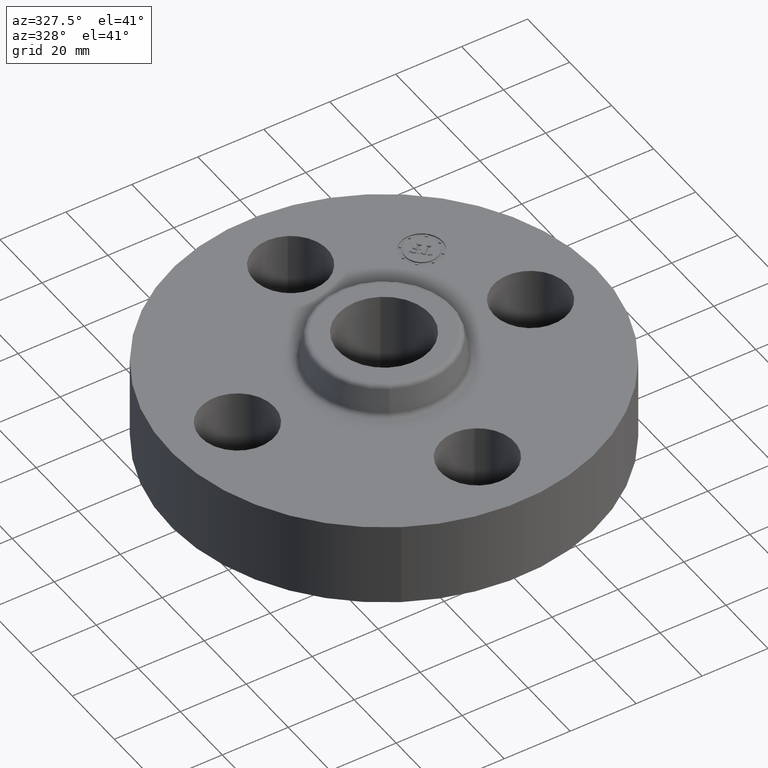
[diagram: clean part render]
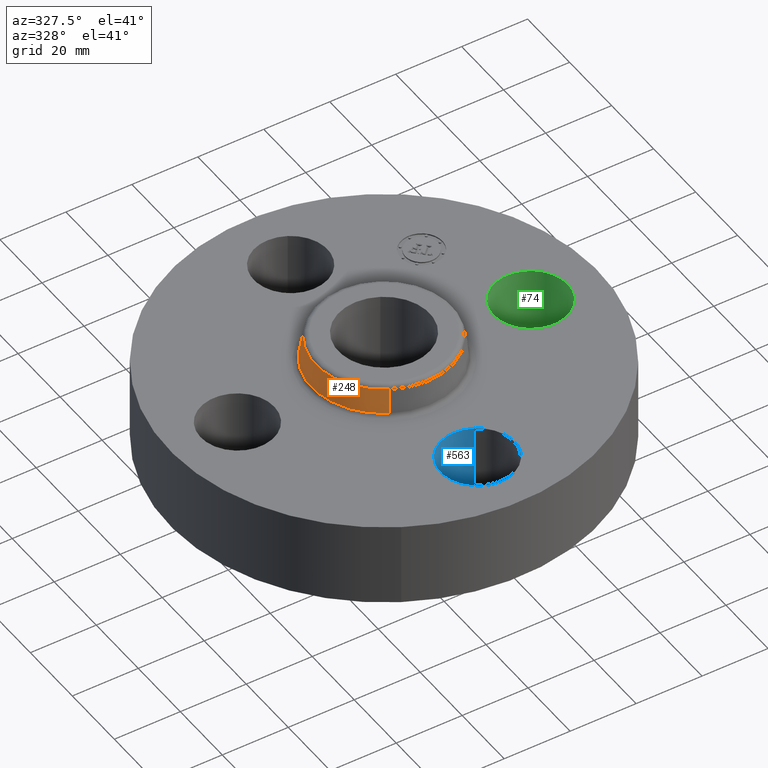
[diagram: same view with three faces highlighted in distinct colors, each labeled with its STEP entity id]
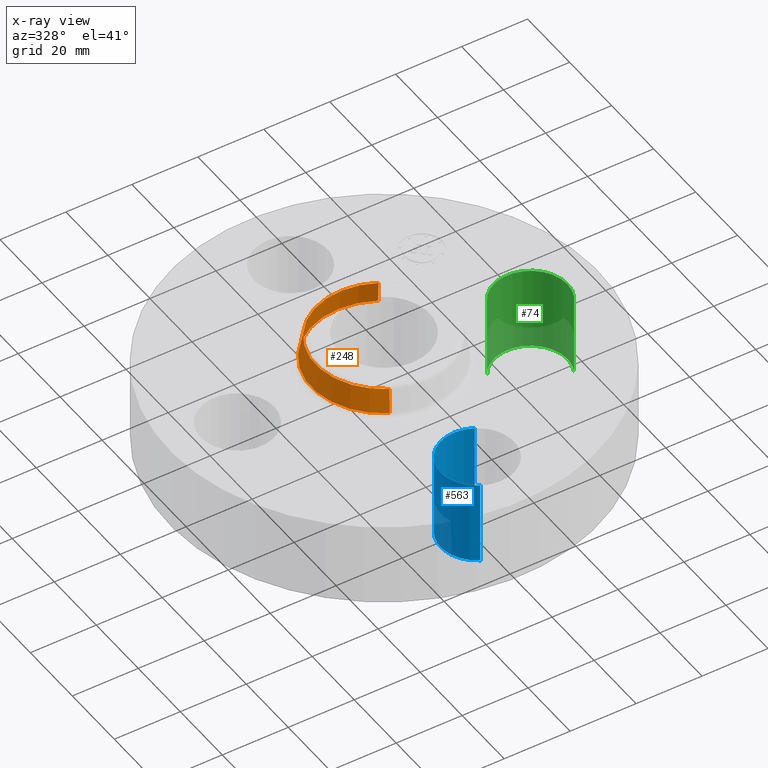
[diagram: x-ray of the same camera — body ghosted, the three highlighted faces saturated]
A machine part, auxiliary view with three faces highlighted in distinct colors.
The next image is the same camera in x-ray (body ghosted, the three faces saturated) — at least one of them is partly hidden behind the body in this view.
Their STEP definitions:

[orange] entity #248 — the highlighted conical surface has half-angle 10 deg.
#196=AXIS2_PLACEMENT_3D('Circle Axis2P3D',#194,#195,$) ;
#209=AXIS2_PLACEMENT_3D('Cone Axis2P3D',#206,#207,#208) ;
#239=AXIS2_PLACEMENT_3D('Circle Axis2P3D',#237,#238,$) ;
#167=CARTESIAN_POINT('Vertex',(0.415305974593,0.760212487246,1.04958110934)) ;
#174=CARTESIAN_POINT('Vertex',(-0.415305974593,-0.760212487246,1.04958110934)) ;
#194=CARTESIAN_POINT('Axis2P3D Location',(0.,0.,1.04958110934)) ;
#206=CARTESIAN_POINT('Axis2P3D Location',(0.,0.,1.33041889067)) ;
#211=CARTESIAN_POINT('Line Origine',(0.403435571318,0.7384838598,1.19)) ;
#215=CARTESIAN_POINT('Vertex',(0.391565168043,0.716755232353,1.33041889067)) ;
#222=CARTESIAN_POINT('Vertex',(-0.391565168043,-0.716755232353,1.33041889067)) ;
#225=CARTESIAN_POINT('Line Origine',(-0.403435571318,-0.7384838598,1.19)) ;
#237=CARTESIAN_POINT('Axis2P3D Location',(0.,0.,1.33041889067)) ;
#195=DIRECTION('Axis2P3D Direction',(0.,0.,-0.0393700787402)) ;
#207=DIRECTION('Axis2P3D Direction',(0.,0.,-0.0393700787402)) ;
#208=DIRECTION('Axis2P3D XDirection',(-0.0188750212049,-0.0345504945626,0.)) ;
#212=DIRECTION('Vector Direction',(0.00327761303565,0.00599963041829,-0.03877195878)) ;
#226=DIRECTION('Vector Direction',(-0.00327761303565,-0.00599963041829,-0.03877195878)) ;
#238=DIRECTION('Axis2P3D Direction',(0.,0.,-0.0393700787402)) ;
#213=VECTOR('Line Direction',#212,0.0393700787402) ;
#227=VECTOR('Line Direction',#226,0.0393700787402) ;
#243=ORIENTED_EDGE('',*,*,#198,.F.) ;
#244=ORIENTED_EDGE('',*,*,#229,.T.) ;
#245=ORIENTED_EDGE('',*,*,#241,.T.) ;
#246=ORIENTED_EDGE('',*,*,#217,.F.) ;
#248=ADVANCED_FACE('PartBody',(#247),#210,.T.) ;
#197=CIRCLE('generated circle',#196,0.866257512693) ;
#240=CIRCLE('generated circle',#239,0.816738234644) ;
#210=CONICAL_SURFACE('Cone',#209,0.816738234644,0.174532925199) ;
#198=EDGE_CURVE('',#175,#168,#197,.T.) ;
#217=EDGE_CURVE('',#168,#216,#214,.F.) ;
#229=EDGE_CURVE('',#175,#223,#228,.F.) ;
#241=EDGE_CURVE('',#223,#216,#240,.T.) ;
#242=EDGE_LOOP('',(#243,#244,#245,#246)) ;
#247=FACE_OUTER_BOUND('',#242,.T.) ;
#214=LINE('Line',#211,#213) ;
#228=LINE('Line',#225,#227) ;
#168=VERTEX_POINT('',#167) ;
#175=VERTEX_POINT('',#174) ;
#216=VERTEX_POINT('',#215) ;
#223=VERTEX_POINT('',#222) ;

[blue] entity #563 — the highlighted cylindrical surface (partial cylindrical patch) has radius 11.176 mm, axis along (0, -0, -1).
#391=AXIS2_PLACEMENT_3D('Circle Axis2P3D',#389,#390,$) ;
#524=AXIS2_PLACEMENT_3D('Cylinder Axis2P3D',#521,#522,#523) ;
#554=AXIS2_PLACEMENT_3D('Circle Axis2P3D',#552,#553,$) ;
#384=CARTESIAN_POINT('Vertex',(0.210947236987,-1.36386367277,0.)) ;
#386=CARTESIAN_POINT('Vertex',(-0.210947236987,-2.13613632724,0.)) ;
#389=CARTESIAN_POINT('Axis2P3D Location',(3.49676543189E-017,-1.75000000001,0.)) ;
#521=CARTESIAN_POINT('Axis2P3D Location',(1.07156594926E-016,-1.75000000001,0.99606299213)) ;
#526=CARTESIAN_POINT('Line Origine',(0.210947236987,-1.36386367277,0.500000000002)) ;
#530=CARTESIAN_POINT('Vertex',(0.210947236987,-1.36386367277,1.)) ;
#533=CARTESIAN_POINT('Line Origine',(-0.210947236987,-2.13613632724,0.500000000002)) ;
#537=CARTESIAN_POINT('Vertex',(-0.210947236987,-2.13613632724,1.)) ;
#552=CARTESIAN_POINT('Axis2P3D Location',(1.07156594926E-016,-1.75000000001,1.)) ;
#390=DIRECTION('Axis2P3D Direction',(0.,0.,-0.0393700787402)) ;
#522=DIRECTION('Axis2P3D Direction',(0.,-0.,-0.0393700787402)) ;
#523=DIRECTION('Axis2P3D XDirection',(-0.0188750212049,-0.0345504945626,0.)) ;
#527=DIRECTION('Vector Direction',(0.,0.,-0.0393700787402)) ;
#534=DIRECTION('Vector Direction',(0.,0.,-0.0393700787402)) ;
#553=DIRECTION('Axis2P3D Direction',(0.,-0.,-0.0393700787402)) ;
#528=VECTOR('Line Direction',#527,0.0393700787402) ;
#535=VECTOR('Line Direction',#534,0.0393700787402) ;
#558=ORIENTED_EDGE('',*,*,#539,.F.) ;
#559=ORIENTED_EDGE('',*,*,#393,.T.) ;
#560=ORIENTED_EDGE('',*,*,#532,.T.) ;
#561=ORIENTED_EDGE('',*,*,#556,.F.) ;
#563=ADVANCED_FACE('PartBody',(#562),#525,.F.) ;
#392=CIRCLE('generated circle',#391,0.440000000002) ;
#555=CIRCLE('generated circle',#554,0.440000000002) ;
#525=CYLINDRICAL_SURFACE('generated cylinder',#524,0.440000000002) ;
#393=EDGE_CURVE('',#387,#385,#392,.T.) ;
#532=EDGE_CURVE('',#385,#531,#529,.F.) ;
#539=EDGE_CURVE('',#387,#538,#536,.F.) ;
#556=EDGE_CURVE('',#538,#531,#555,.T.) ;
#557=EDGE_LOOP('',(#558,#559,#560,#561)) ;
#562=FACE_OUTER_BOUND('',#557,.T.) ;
#529=LINE('Line',#526,#528) ;
#536=LINE('Line',#533,#535) ;
#385=VERTEX_POINT('',#384) ;
#387=VERTEX_POINT('',#386) ;
#531=VERTEX_POINT('',#530) ;
#538=VERTEX_POINT('',#537) ;

[green] entity #74 — the highlighted cylindrical surface (partial cylindrical patch) has radius 11.176 mm, axis along (0, -0, -1).
#38=AXIS2_PLACEMENT_3D('Cylinder Axis2P3D',#35,#36,#37) ;
#51=AXIS2_PLACEMENT_3D('Circle Axis2P3D',#49,#50,$) ;
#65=AXIS2_PLACEMENT_3D('Circle Axis2P3D',#63,#64,$) ;
#35=CARTESIAN_POINT('Axis2P3D Location',(1.75000000001,0.,0.99606299213)) ;
#40=CARTESIAN_POINT('Line Origine',(1.36386367277,0.210947236987,0.500000000002)) ;
#44=CARTESIAN_POINT('Vertex',(1.36386367277,0.210947236987,0.)) ;
#46=CARTESIAN_POINT('Vertex',(1.36386367277,0.210947236987,1.)) ;
#49=CARTESIAN_POINT('Axis2P3D Location',(1.75000000001,0.,0.)) ;
#53=CARTESIAN_POINT('Vertex',(2.13613632724,-0.210947236987,0.)) ;
#56=CARTESIAN_POINT('Line Origine',(2.13613632724,-0.210947236987,0.500000000002)) ;
#60=CARTESIAN_POINT('Vertex',(2.13613632724,-0.210947236987,1.)) ;
#63=CARTESIAN_POINT('Axis2P3D Location',(1.75000000001,0.,1.)) ;
#36=DIRECTION('Axis2P3D Direction',(0.,-0.,-0.0393700787402)) ;
#37=DIRECTION('Axis2P3D XDirection',(0.0345504945626,-0.0188750212049,0.)) ;
#41=DIRECTION('Vector Direction',(0.,0.,-0.0393700787402)) ;
#50=DIRECTION('Axis2P3D Direction',(0.,-0.,-0.0393700787402)) ;
#57=DIRECTION('Vector Direction',(0.,0.,-0.0393700787402)) ;
#64=DIRECTION('Axis2P3D Direction',(0.,-0.,-0.0393700787402)) ;
#42=VECTOR('Line Direction',#41,0.0393700787402) ;
#58=VECTOR('Line Direction',#57,0.0393700787402) ;
#69=ORIENTED_EDGE('',*,*,#48,.F.) ;
#70=ORIENTED_EDGE('',*,*,#55,.T.) ;
#71=ORIENTED_EDGE('',*,*,#62,.T.) ;
#72=ORIENTED_EDGE('',*,*,#67,.F.) ;
#74=ADVANCED_FACE('PartBody',(#73),#39,.F.) ;
#52=CIRCLE('generated circle',#51,0.440000000002) ;
#66=CIRCLE('generated circle',#65,0.440000000002) ;
#39=CYLINDRICAL_SURFACE('generated cylinder',#38,0.440000000002) ;
#48=EDGE_CURVE('',#45,#47,#43,.F.) ;
#55=EDGE_CURVE('',#45,#54,#52,.T.) ;
#62=EDGE_CURVE('',#54,#61,#59,.F.) ;
#67=EDGE_CURVE('',#47,#61,#66,.T.) ;
#68=EDGE_LOOP('',(#69,#70,#71,#72)) ;
#73=FACE_OUTER_BOUND('',#68,.T.) ;
#43=LINE('Line',#40,#42) ;
#59=LINE('Line',#56,#58) ;
#45=VERTEX_POINT('',#44) ;
#47=VERTEX_POINT('',#46) ;
#54=VERTEX_POINT('',#53) ;
#61=VERTEX_POINT('',#60) ;